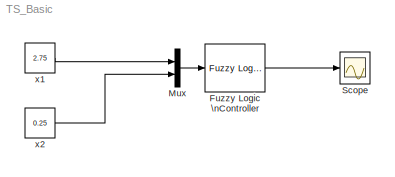
MODEL TS_Basic
KIND model
BLOCK [Reference] Fuzzy Logic \nController  REF=fuzblock/Fuzzy Logic \nController  (lib defined in mdl_858b3b3e7478)
  FunctionWithSeparateData = off
  GeneratePreprocessorConditionals = off
  Ports = [1, 1]
  RTWMemSecDataConstants = Inherit from model
  RTWMemSecDataInternal = Inherit from model
  RTWMemSecDataParameters = Inherit from model
  RTWMemSecFuncExecute = Inherit from model
  RTWMemSecFuncInitTerm = Inherit from model
  SID = 1
  ShowPortLabels = FromPortIcon
  SourceBlock = fuzblock/Fuzzy Logic \nController
  SourceType = FIS
  SystemSampleTime = -1
  fis = takaji
BLOCK [Mux] Mux
  DisplayOption = bar
  Inputs = 2
  Ports = [2, 1]
  SID = 2
BLOCK [Scope] Scope
  DataFormat = StructureWithTime
  Floating = off
  LimitDataPoints = off
  NumInputPorts = 1
  Ports = [1]
  SID = 5
  SampleTime = 0
  SaveToWorkspace = on
BLOCK [Constant] x1
  SID = 3
  Value = 2.75
BLOCK [Constant] x2
  SID = 4
  Value = 0.25
LINE Fuzzy Logic \nController:1 -> Scope:1
LINE Mux:1 -> Fuzzy Logic \nController:1
LINE x1:1 -> Mux:1
LINE x2:1 -> Mux:2
